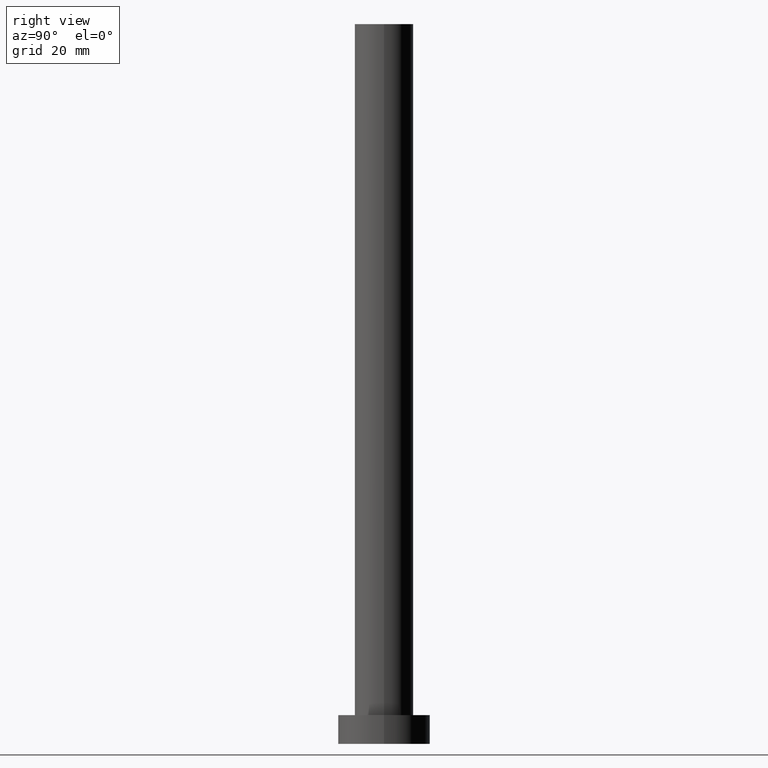
[diagram: clean part render]
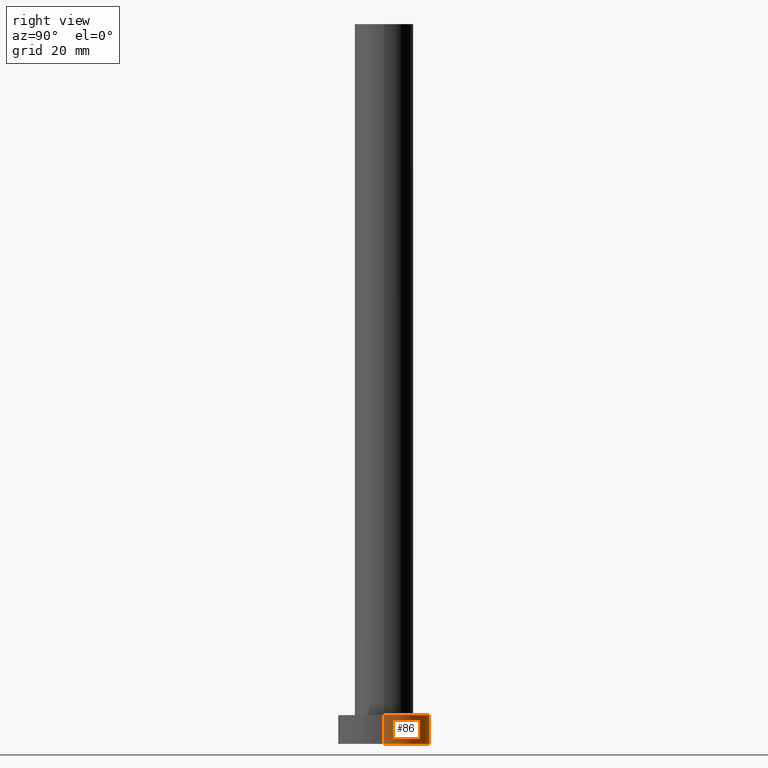
[diagram: same view with one face highlighted and labeled with its STEP entity id]
A machine part, right view. The second image highlights one B-rep face of the part: STEP entity #86.
In plain terms, the highlighted cylindrical surface (partial cylindrical patch) has radius 8 mm, axis along (-0, -0, -1).
Its self-contained STEP definition (entity closure, byte-faithful):
#16 = ORIENTED_EDGE ( 'NONE', *, *, #185, .F. ) ;
#18 = DIRECTION ( 'NONE',  ( -1.000000000000000000, 0.000000000000000000, 0.000000000000000000 ) ) ;
#37 = AXIS2_PLACEMENT_3D ( 'NONE', #44, #52, #200 ) ;
#38 = LINE ( 'NONE', #56, #193 ) ;
#39 = DIRECTION ( 'NONE',  ( 0.000000000000000000, 0.000000000000000000, 1.000000000000000000 ) ) ;
#41 = DIRECTION ( 'NONE',  ( -0.000000000000000000, -0.000000000000000000, -1.000000000000000000 ) ) ;
#44 = CARTESIAN_POINT ( 'NONE',  ( 0.000000000000000000, 0.000000000000000000, 0.000000000000000000 ) ) ;
#48 = ORIENTED_EDGE ( 'NONE', *, *, #174, .F. ) ;
#52 = DIRECTION ( 'NONE',  ( 0.000000000000000000, 0.000000000000000000, 1.000000000000000000 ) ) ;
#53 = CARTESIAN_POINT ( 'NONE',  ( -8.000000000000000000, 0.000000000000000000, 5.000000000000000000 ) ) ;
#54 = FACE_OUTER_BOUND ( 'NONE', #251, .T. ) ;
#56 = CARTESIAN_POINT ( 'NONE',  ( 8.000000000000000000, 9.797174393178825657E-16, 5.000000000000000000 ) ) ;
#57 = CARTESIAN_POINT ( 'NONE',  ( 0.000000000000000000, 0.000000000000000000, 5.000000000000000000 ) ) ;
#86 = ADVANCED_FACE ( 'NONE', ( #54 ), #158, .T. ) ;
#88 = VECTOR ( 'NONE', #41, 1000.000000000000000 ) ;
#90 = ORIENTED_EDGE ( 'NONE', *, *, #92, .T. ) ;
#92 = EDGE_CURVE ( 'NONE', #94, #133, #229, .T. ) ;
#94 = VERTEX_POINT ( 'NONE', #255 ) ;
#97 = DIRECTION ( 'NONE',  ( -0.000000000000000000, -0.000000000000000000, -1.000000000000000000 ) ) ;
#114 = CIRCLE ( 'NONE', #218, 8.000000000000000000 ) ;
#119 = DIRECTION ( 'NONE',  ( 1.000000000000000000, 0.000000000000000000, 0.000000000000000000 ) ) ;
#133 = VERTEX_POINT ( 'NONE', #135 ) ;
#135 = CARTESIAN_POINT ( 'NONE',  ( -8.000000000000000000, 0.000000000000000000, 0.000000000000000000 ) ) ;
#137 = DIRECTION ( 'NONE',  ( -0.000000000000000000, -0.000000000000000000, -1.000000000000000000 ) ) ;
#139 = CARTESIAN_POINT ( 'NONE',  ( 0.000000000000000000, 0.000000000000000000, 5.000000000000000000 ) ) ;
#141 = EDGE_CURVE ( 'NONE', #168, #94, #38, .T. ) ;
#146 = AXIS2_PLACEMENT_3D ( 'NONE', #57, #137, #18 ) ;
#153 = LINE ( 'NONE', #53, #88 ) ;
#158 = CYLINDRICAL_SURFACE ( 'NONE', #146, 8.000000000000000000 ) ;
#168 = VERTEX_POINT ( 'NONE', #223 ) ;
#174 = EDGE_CURVE ( 'NONE', #230, #133, #153, .T. ) ;
#184 = CARTESIAN_POINT ( 'NONE',  ( -8.000000000000000000, 0.000000000000000000, 5.000000000000000000 ) ) ;
#185 = EDGE_CURVE ( 'NONE', #168, #230, #114, .T. ) ;
#193 = VECTOR ( 'NONE', #97, 1000.000000000000000 ) ;
#200 = DIRECTION ( 'NONE',  ( 1.000000000000000000, 0.000000000000000000, 0.000000000000000000 ) ) ;
#215 = ORIENTED_EDGE ( 'NONE', *, *, #141, .T. ) ;
#218 = AXIS2_PLACEMENT_3D ( 'NONE', #139, #39, #119 ) ;
#223 = CARTESIAN_POINT ( 'NONE',  ( 8.000000000000000000, 9.797174393178825657E-16, 5.000000000000000000 ) ) ;
#229 = CIRCLE ( 'NONE', #37, 8.000000000000000000 ) ;
#230 = VERTEX_POINT ( 'NONE', #184 ) ;
#251 = EDGE_LOOP ( 'NONE', ( #16, #215, #90, #48 ) ) ;
#255 = CARTESIAN_POINT ( 'NONE',  ( 8.000000000000000000, 9.797174393178825657E-16, 0.000000000000000000 ) ) ;